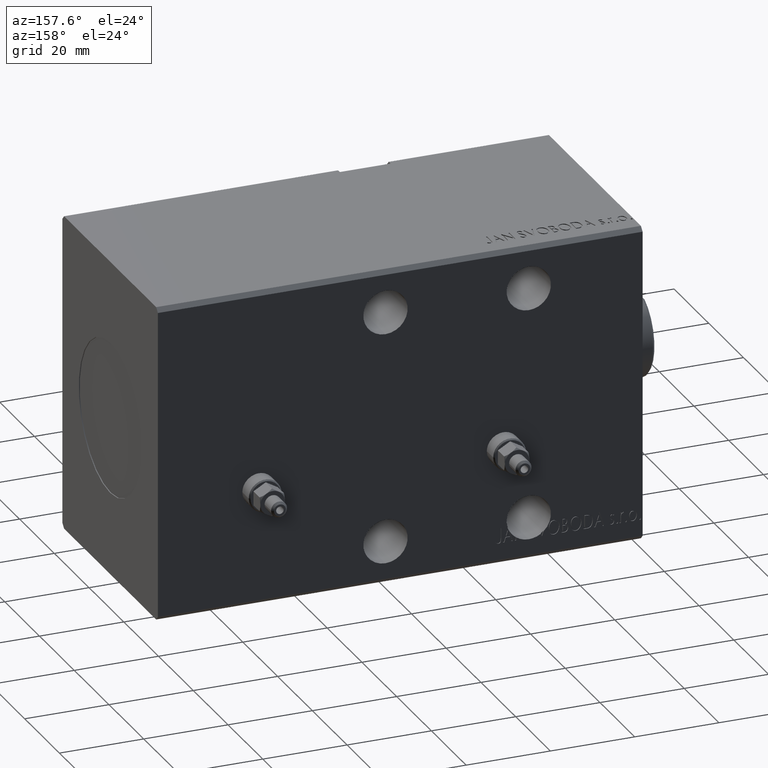
[diagram: clean part render]
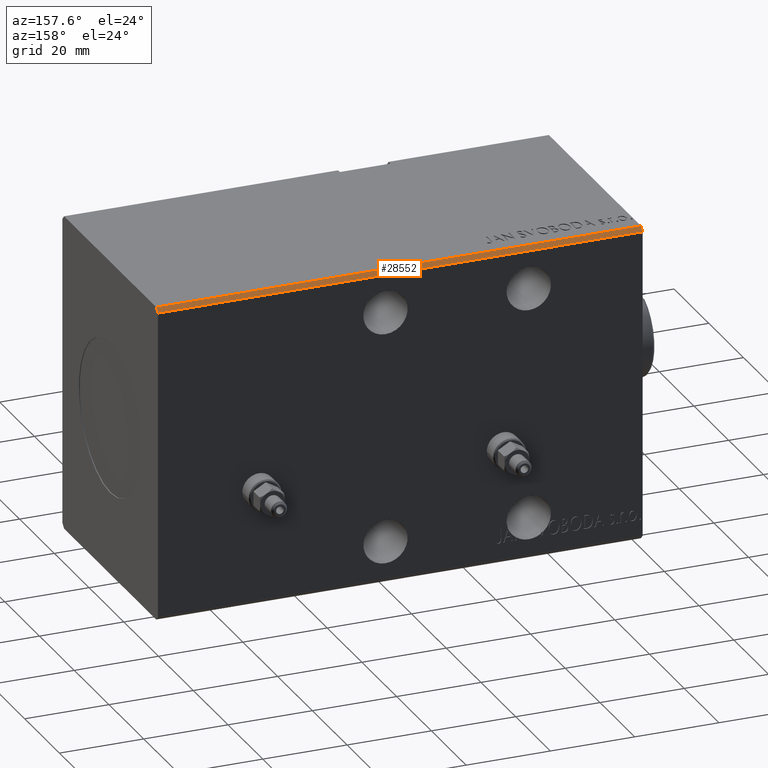
[diagram: same view with one face highlighted and labeled with its STEP entity id]
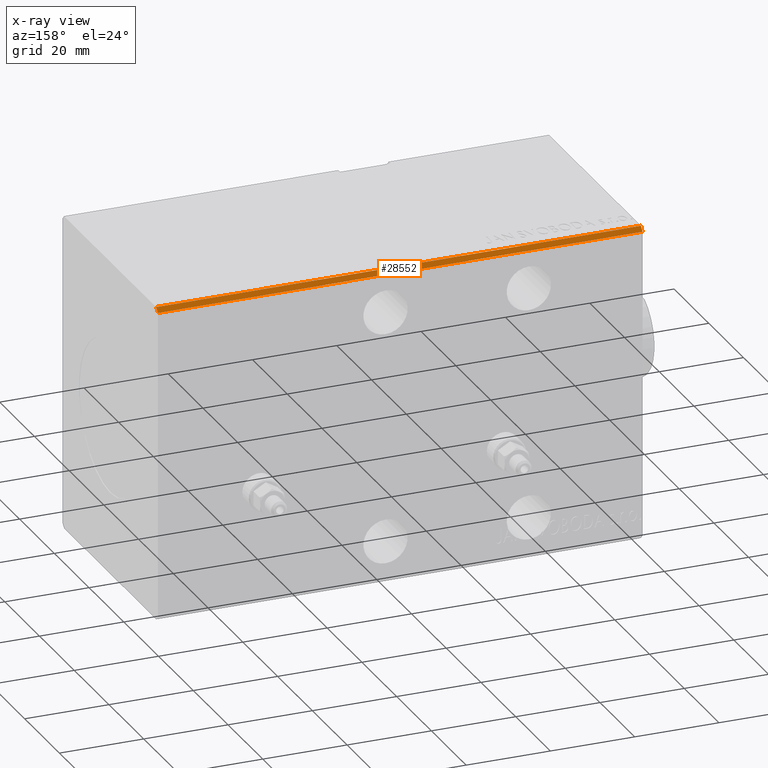
[diagram: x-ray of the same camera — body ghosted, the highlighted face saturated]
A machine part, auxiliary view. The second image highlights one B-rep face of the part: STEP entity #28552.
The next image is the same camera in x-ray: the body ghosted, the highlighted face saturated — about 0% of this face is hidden behind the body in this view.
In plain terms, the highlighted planar face has unit normal (0, -0.7071, -0.7071).
Its self-contained STEP definition (entity closure, byte-faithful):
#3036 = EDGE_LOOP ( 'NONE', ( #8492, #29338, #10805, #37119 ) ) ;
#3149 = VERTEX_POINT ( 'NONE', #32790 ) ;
#5471 = CARTESIAN_POINT ( 'NONE',  ( 115.0000000000000000, 27.50000000000000355, 36.50000000000000711 ) ) ;
#6830 = EDGE_CURVE ( 'NONE', #24671, #35593, #24956, .T. ) ;
#7629 = DIRECTION ( 'NONE',  ( -1.000000000000000000, -0.000000000000000000, -0.000000000000000000 ) ) ;
#8492 = ORIENTED_EDGE ( 'NONE', *, *, #6830, .T. ) ;
#10805 = ORIENTED_EDGE ( 'NONE', *, *, #36781, .F. ) ;
#13946 = LINE ( 'NONE', #36720, #40175 ) ;
#17128 = CARTESIAN_POINT ( 'NONE',  ( 115.0000000000000000, 27.50000000000000355, 36.50000000000000711 ) ) ;
#18327 = DIRECTION ( 'NONE',  ( 0.000000000000000000, -0.7071067811865474617, 0.7071067811865474617 ) ) ;
#18447 = EDGE_CURVE ( 'NONE', #36251, #35593, #13946, .T. ) ;
#21848 = EDGE_CURVE ( 'NONE', #3149, #24671, #36106, .T. ) ;
#21907 = FACE_OUTER_BOUND ( 'NONE', #3036, .T. ) ;
#23879 = DIRECTION ( 'NONE',  ( -1.000000000000000000, -0.000000000000000000, -0.000000000000000000 ) ) ;
#24671 = VERTEX_POINT ( 'NONE', #32044 ) ;
#24956 = LINE ( 'NONE', #34837, #33069 ) ;
#25276 = CARTESIAN_POINT ( 'NONE',  ( 115.0000000000000000, 27.50000000000000355, 36.50000000000000711 ) ) ;
#28112 = DIRECTION ( 'NONE',  ( 0.000000000000000000, -0.7071067811865474617, 0.7071067811865474617 ) ) ;
#28552 = ADVANCED_FACE ( 'NONE', ( #21907 ), #34326, .F. ) ;
#29064 = VECTOR ( 'NONE', #18327, 1000.000000000000114 ) ;
#29338 = ORIENTED_EDGE ( 'NONE', *, *, #18447, .F. ) ;
#31693 = CARTESIAN_POINT ( 'NONE',  ( 0.000000000000000000, 26.50000000000000355, 37.50000000000000711 ) ) ;
#32044 = CARTESIAN_POINT ( 'NONE',  ( 0.000000000000000000, 27.50000000000000355, 36.50000000000000711 ) ) ;
#32790 = CARTESIAN_POINT ( 'NONE',  ( 115.0000000000000000, 27.50000000000000355, 36.50000000000000711 ) ) ;
#33069 = VECTOR ( 'NONE', #28112, 1000.000000000000114 ) ;
#34326 = PLANE ( 'NONE',  #40343 ) ;
#34350 = LINE ( 'NONE', #5471, #29064 ) ;
#34534 = DIRECTION ( 'NONE',  ( 0.000000000000000000, 0.7071067811865474617, -0.7071067811865474617 ) ) ;
#34743 = DIRECTION ( 'NONE',  ( 0.000000000000000000, -0.7071067811865475727, -0.7071067811865475727 ) ) ;
#34837 = CARTESIAN_POINT ( 'NONE',  ( 0.000000000000000000, 27.50000000000000355, 36.50000000000000711 ) ) ;
#35593 = VERTEX_POINT ( 'NONE', #31693 ) ;
#36106 = LINE ( 'NONE', #17128, #38243 ) ;
#36251 = VERTEX_POINT ( 'NONE', #40993 ) ;
#36720 = CARTESIAN_POINT ( 'NONE',  ( 115.0000000000000000, 26.50000000000000355, 37.50000000000000711 ) ) ;
#36781 = EDGE_CURVE ( 'NONE', #3149, #36251, #34350, .T. ) ;
#37119 = ORIENTED_EDGE ( 'NONE', *, *, #21848, .T. ) ;
#38243 = VECTOR ( 'NONE', #23879, 1000.000000000000000 ) ;
#40175 = VECTOR ( 'NONE', #7629, 1000.000000000000000 ) ;
#40343 = AXIS2_PLACEMENT_3D ( 'NONE', #25276, #34743, #34534 ) ;
#40993 = CARTESIAN_POINT ( 'NONE',  ( 115.0000000000000000, 26.50000000000000355, 37.50000000000000711 ) ) ;